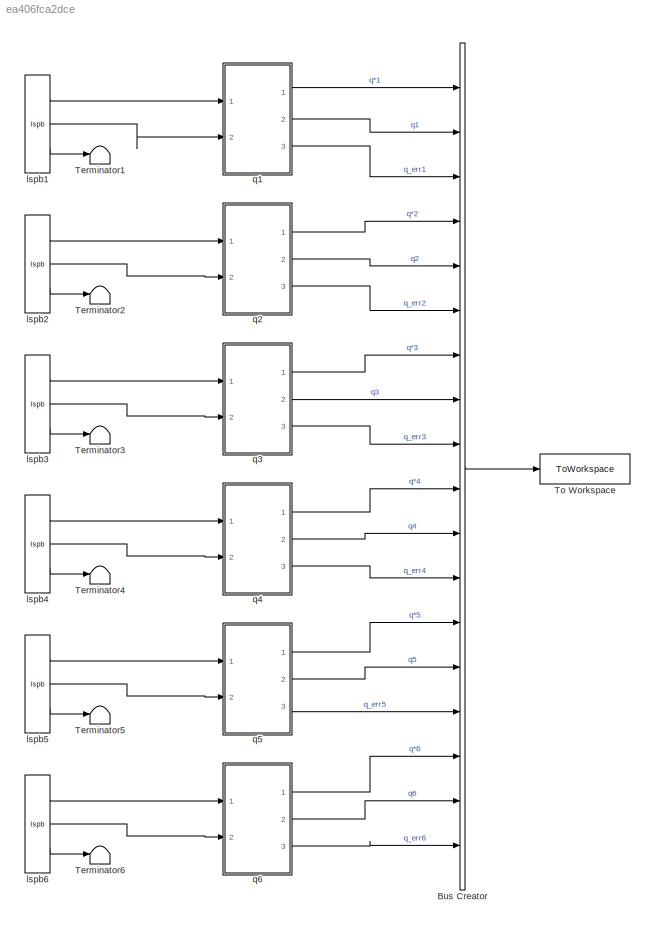
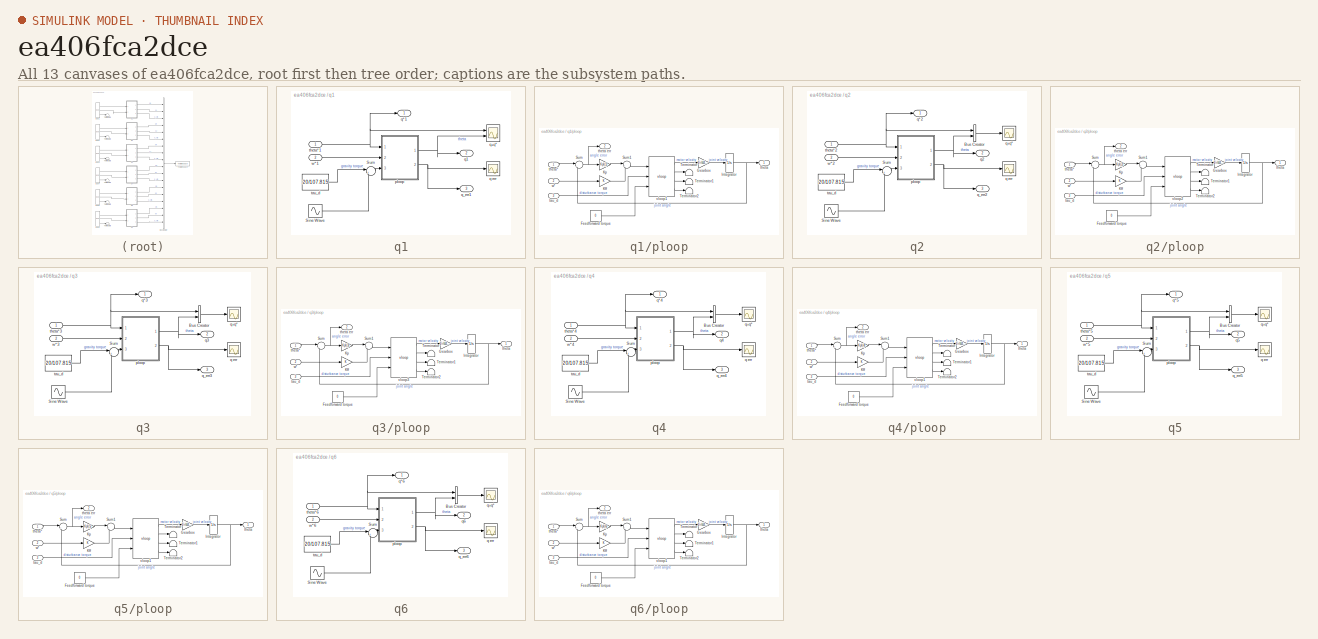
[diagram: thumbnail index - all 13 canvases of the model, root first then tree order]
MODEL slx_ea406fca2dce
KIND model
CONFIG AbsTol = auto
CONFIG EnableMultiTasking = on
CONFIG FixedStep = auto
CONFIG MaxStep = auto
CONFIG MinStep = auto
CONFIG RelTol = 1e-3
CONFIG SampleTimeConstraint = Unconstrained
CONFIG SolverName = ode15s
CONFIG StartTime = 0.0
CONFIG StopTime = 1
BLOCK [BusCreator] Bus Creator
  DisplayOption = bar
  InheritFromInputs = on
  Inputs = 18
  Ports = [18, 1]
BLOCK [Terminator] Terminator1
BLOCK [Terminator] Terminator2
BLOCK [Terminator] Terminator3
BLOCK [Terminator] Terminator4
BLOCK [Terminator] Terminator5
BLOCK [Terminator] Terminator6
BLOCK [ToWorkspace] To Workspace
  FixptAsFi = on
  MaxDataPoints = inf
  Ports = [1]
  SampleTime = -1
  SaveFormat = Structure With Time
  VariableName = ploop
BLOCK [Reference] lspb1  REF=roblocks/Toolbox/lspb  (lib defined in mdl_2a292b13c81b, mdl_69400f8cfe22, +12 more)
  Ports = [0, 3]
  SourceBlock = roblocks/Toolbox/lspb
BLOCK [Reference] lspb2  REF=roblocks/Toolbox/lspb  (lib defined in mdl_2a292b13c81b, mdl_69400f8cfe22, +12 more)
  Ports = [0, 3]
  SourceBlock = roblocks/Toolbox/lspb
BLOCK [Reference] lspb3  REF=roblocks/Toolbox/lspb  (lib defined in mdl_2a292b13c81b, mdl_69400f8cfe22, +12 more)
  Ports = [0, 3]
  SourceBlock = roblocks/Toolbox/lspb
BLOCK [Reference] lspb4  REF=roblocks/Toolbox/lspb  (lib defined in mdl_2a292b13c81b, mdl_69400f8cfe22, +12 more)
  Ports = [0, 3]
  SourceBlock = roblocks/Toolbox/lspb
BLOCK [Reference] lspb5  REF=roblocks/Toolbox/lspb  (lib defined in mdl_2a292b13c81b, mdl_69400f8cfe22, +12 more)
  Ports = [0, 3]
  SourceBlock = roblocks/Toolbox/lspb
BLOCK [Reference] lspb6  REF=roblocks/Toolbox/lspb  (lib defined in mdl_2a292b13c81b, mdl_69400f8cfe22, +12 more)
  Ports = [0, 3]
  SourceBlock = roblocks/Toolbox/lspb
BLOCK [SubSystem] q1
  Ports = [2, 3]
  RequestExecContextInheritance = off
BLOCK [Sin] q1/Sine Wave
  Amplitude = Amp_noise(1)
  Frequency = Fr_noise(1)
  Ports = [0, 1]
  SampleTime = 0.0001
BLOCK [Sum] q1/Sum
  Inputs = |++
  Ports = [2, 1]
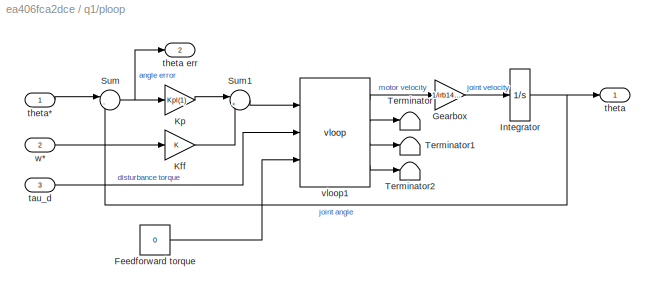
BLOCK [SubSystem] q1/ploop
  Ports = [3, 2]
  RequestExecContextInheritance = off
BLOCK [Constant] q1/ploop/Feedforward torque
  Value = 0
BLOCK [Gain] q1/ploop/Gearbox
  Gain = 1/irb140.links(1, 1).G
BLOCK [Integrator] q1/ploop/Integrator
  Ports = [1, 1]
BLOCK [Gain] q1/ploop/Kff
BLOCK [Gain] q1/ploop/Kp
  Gain = Kpl(1)
BLOCK [Sum] q1/ploop/Sum
  Inputs = |-+
  Ports = [2, 1]
BLOCK [Sum] q1/ploop/Sum1
  Inputs = |++
  Ports = [2, 1]
BLOCK [Terminator] q1/ploop/Terminator
BLOCK [Terminator] q1/ploop/Terminator1
BLOCK [Terminator] q1/ploop/Terminator2
BLOCK [Inport] q1/ploop/tau_d
  Port = 3
BLOCK [Outport] q1/ploop/theta
  VectorParamsAs1DForOutWhenUnconnected = off
BLOCK [Outport] q1/ploop/theta err
  Port = 2
  VectorParamsAs1DForOutWhenUnconnected = off
BLOCK [Inport] q1/ploop/theta*
BLOCK [Reference] q1/ploop/vloop1  REF=roblocks/Arm/vloop  (lib defined in mdl_2a292b13c81b, mdl_69400f8cfe22, +12 more)
  Ports = [3, 4]
  SourceBlock = roblocks/Arm/vloop
BLOCK [Inport] q1/ploop/w*
  Port = 2
BLOCK [Scope] q1/q err
  Floating = off
  NumInputPorts = 1
  Ports = [1]
  ScopeSpecificationString = Simulink.scopes.TimeScopeBlockCfg('CurrentConfiguration', extmgr.ConfigurationSet(extmgr.Configuration('Core','General UI',true),extmgr.Configuration('Core','Source UI',true),extmgr.Configuration('Sources','WiredSimulink',true,'DataLoggingSaveFormat','StructureWithTime','DataLoggingLimitDataPoints',true,'DataLoggingDecimation','1','DataLoggingDecimateData',true),extmgr.Configuration('Visuals','Tim...<+1811ch>
BLOCK [Outport] q1/q*1
  VectorParamsAs1DForOutWhenUnconnected = off
BLOCK [Scope] q1/q+q* 
  Floating = off
  NumInputPorts = 2
  Ports = [2]
  ScopeSpecificationString = Simulink.scopes.TimeScopeBlockCfg('CurrentConfiguration', extmgr.ConfigurationSet(extmgr.Configuration('Core','General UI',true),extmgr.Configuration('Core','Source UI',true),extmgr.Configuration('Sources','WiredSimulink',true,'DataLoggingVariableName','ScopeData1','DataLoggingSaveFormat','StructureWithTime','DataLoggingLimitDataPoints',true,'DataLoggingDecimation','1','DataLoggingDecimateData',tr...<+1752ch>
BLOCK [Outport] q1/q1
  Port = 2
  VectorParamsAs1DForOutWhenUnconnected = off
BLOCK [Outport] q1/q_err1
  Port = 3
  VectorParamsAs1DForOutWhenUnconnected = off
BLOCK [Constant] q1/tau_d
  Value = 20/107.815
BLOCK [Inport] q1/theta*1
BLOCK [Inport] q1/w*1
  Port = 2
BLOCK [SubSystem] q2
  Ports = [2, 3]
  RequestExecContextInheritance = off
BLOCK [BusCreator] q2/Bus Creator
  DisplayOption = bar
  InheritFromInputs = on
  Inputs = 2
  Ports = [2, 1]
BLOCK [Sin] q2/Sine Wave
  Amplitude = Amp_noise(2)
  Frequency = Fr_noise(2)
  Ports = [0, 1]
  SampleTime = 0.0001
BLOCK [Sum] q2/Sum
  Inputs = |++
  Ports = [2, 1]
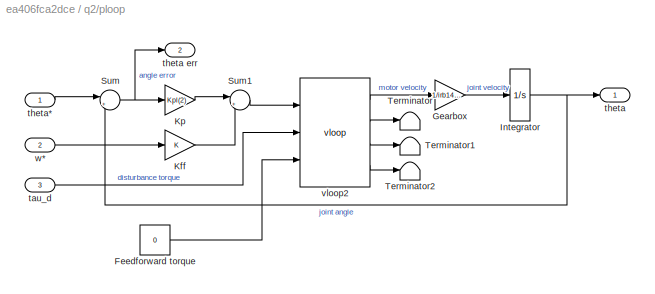
BLOCK [SubSystem] q2/ploop
  Ports = [3, 2]
  RequestExecContextInheritance = off
BLOCK [Constant] q2/ploop/Feedforward torque
  Value = 0
BLOCK [Gain] q2/ploop/Gearbox
  Gain = 1/irb140.links(1, 2).G
BLOCK [Integrator] q2/ploop/Integrator
  Ports = [1, 1]
BLOCK [Gain] q2/ploop/Kff
BLOCK [Gain] q2/ploop/Kp
  Gain = Kpl(2)
BLOCK [Sum] q2/ploop/Sum
  Inputs = |+-
  Ports = [2, 1]
BLOCK [Sum] q2/ploop/Sum1
  Inputs = |++
  Ports = [2, 1]
BLOCK [Terminator] q2/ploop/Terminator
BLOCK [Terminator] q2/ploop/Terminator1
BLOCK [Terminator] q2/ploop/Terminator2
BLOCK [Inport] q2/ploop/tau_d
  Port = 3
BLOCK [Outport] q2/ploop/theta
  VectorParamsAs1DForOutWhenUnconnected = off
BLOCK [Outport] q2/ploop/theta err
  Port = 2
  VectorParamsAs1DForOutWhenUnconnected = off
BLOCK [Inport] q2/ploop/theta*
BLOCK [Reference] q2/ploop/vloop2  REF=roblocks/Arm/vloop  (lib defined in mdl_2a292b13c81b, mdl_69400f8cfe22, +12 more)
  Ports = [3, 4]
  SourceBlock = roblocks/Arm/vloop
BLOCK [Inport] q2/ploop/w*
  Port = 2
BLOCK [Scope] q2/q err
  Floating = off
  NumInputPorts = 1
  Ports = [1]
  ScopeSpecificationString = Simulink.scopes.TimeScopeBlockCfg('CurrentConfiguration', extmgr.ConfigurationSet(extmgr.Configuration('Core','General UI',true),extmgr.Configuration('Core','Source UI',true),extmgr.Configuration('Sources','WiredSimulink',true,'DataLoggingSaveFormat','StructureWithTime','DataLoggingLimitDataPoints',true,'DataLoggingDecimation','1','DataLoggingDecimateData',true),extmgr.Configuration('Visuals','Tim...<+1784ch>
BLOCK [Outport] q2/q*2
  VectorParamsAs1DForOutWhenUnconnected = off
BLOCK [Scope] q2/q+q* 
  Floating = off
  NumInputPorts = 1
  Ports = [1]
  ScopeSpecificationString = Simulink.scopes.TimeScopeBlockCfg('CurrentConfiguration', extmgr.ConfigurationSet(extmgr.Configuration('Core','General UI',true),extmgr.Configuration('Core','Source UI',true),extmgr.Configuration('Sources','WiredSimulink',true,'DataLoggingVariableName','ScopeData1','DataLoggingSaveFormat','StructureWithTime','DataLoggingLimitDataPoints',true,'DataLoggingDecimation','1','DataLoggingDecimateData',tr...<+1737ch>  <repeated x4 — deduplicated; at blocks: q+q*>
BLOCK [Outport] q2/q2
  Port = 2
  VectorParamsAs1DForOutWhenUnconnected = off
BLOCK [Outport] q2/q_err2
  Port = 3
  VectorParamsAs1DForOutWhenUnconnected = off
BLOCK [Constant] q2/tau_d
  Value = 20/107.815
BLOCK [Inport] q2/theta*2
BLOCK [Inport] q2/w*2
  Port = 2
BLOCK [SubSystem] q3
  Ports = [2, 3]
  RequestExecContextInheritance = off
BLOCK [BusCreator] q3/Bus Creator
  DisplayOption = bar
  InheritFromInputs = on
  Inputs = 2
  Ports = [2, 1]
BLOCK [Sin] q3/Sine Wave
  Amplitude = Amp_noise(3)
  Frequency = Fr_noise(3)
  Ports = [0, 1]
  SampleTime = 0.0001
BLOCK [Sum] q3/Sum
  Inputs = |++
  Ports = [2, 1]
BLOCK [SubSystem] q3/ploop
  Ports = [3, 2]
  RequestExecContextInheritance = off
BLOCK [Constant] q3/ploop/Feedforward torque
  Value = 0
BLOCK [Gain] q3/ploop/Gearbox
  Gain = 1/irb140.links(1, 3).G
BLOCK [Integrator] q3/ploop/Integrator
  Ports = [1, 1]
BLOCK [Gain] q3/ploop/Kff
BLOCK [Gain] q3/ploop/Kp
  Gain = Kpl(3)
BLOCK [Sum] q3/ploop/Sum
  Inputs = |-+
  Ports = [2, 1]
BLOCK [Sum] q3/ploop/Sum1
  Inputs = |++
  Ports = [2, 1]
BLOCK [Terminator] q3/ploop/Terminator
BLOCK [Terminator] q3/ploop/Terminator1
BLOCK [Terminator] q3/ploop/Terminator2
BLOCK [Inport] q3/ploop/tau_d
  Port = 3
BLOCK [Outport] q3/ploop/theta
  VectorParamsAs1DForOutWhenUnconnected = off
BLOCK [Outport] q3/ploop/theta err
  Port = 2
  VectorParamsAs1DForOutWhenUnconnected = off
BLOCK [Inport] q3/ploop/theta*
BLOCK [Reference] q3/ploop/vloop3  REF=roblocks/Arm/vloop  (lib defined in mdl_2a292b13c81b, mdl_69400f8cfe22, +12 more)
  Ports = [3, 4]
  SourceBlock = roblocks/Arm/vloop
BLOCK [Inport] q3/ploop/w*
  Port = 2
BLOCK [Scope] q3/q err
  Floating = off
  NumInputPorts = 1
  Ports = [1]
  ScopeSpecificationString = Simulink.scopes.TimeScopeBlockCfg('CurrentConfiguration', extmgr.ConfigurationSet(extmgr.Configuration('Core','General UI',true),extmgr.Configuration('Core','Source UI',true),extmgr.Configuration('Sources','WiredSimulink',true,'DataLoggingSaveFormat','StructureWithTime','DataLoggingLimitDataPoints',true,'DataLoggingDecimation','1','DataLoggingDecimateData',true),extmgr.Configuration('Visuals','Tim...<+1754ch>  <repeated x4 — deduplicated; at blocks: q err>
BLOCK [Outport] q3/q*3
  VectorParamsAs1DForOutWhenUnconnected = off
BLOCK [Scope] q3/q+q* 
  Floating = off
  NumInputPorts = 1
  Ports = [1]
BLOCK [Outport] q3/q3
  Port = 2
  VectorParamsAs1DForOutWhenUnconnected = off
BLOCK [Outport] q3/q_err3
  Port = 3
  VectorParamsAs1DForOutWhenUnconnected = off
BLOCK [Constant] q3/tau_d
  Value = 20/107.815
BLOCK [Inport] q3/theta*3
BLOCK [Inport] q3/w*3
  Port = 2
BLOCK [SubSystem] q4
  Ports = [2, 3]
  RequestExecContextInheritance = off
BLOCK [BusCreator] q4/Bus Creator
  DisplayOption = bar
  InheritFromInputs = on
  Inputs = 2
  Ports = [2, 1]
BLOCK [Sin] q4/Sine Wave
  Amplitude = Amp_noise(4)
  Frequency = Fr_noise(4)
  Ports = [0, 1]
  SampleTime = 0.0001
BLOCK [Sum] q4/Sum
  Inputs = |++
  Ports = [2, 1]
BLOCK [SubSystem] q4/ploop
  Ports = [3, 2]
  RequestExecContextInheritance = off
BLOCK [Constant] q4/ploop/Feedforward torque
  Value = 0
BLOCK [Gain] q4/ploop/Gearbox
  Gain = 1/irb140.links(1, 4).G
BLOCK [Integrator] q4/ploop/Integrator
  Ports = [1, 1]
BLOCK [Gain] q4/ploop/Kff
BLOCK [Gain] q4/ploop/Kp
  Gain = Kpl(4)
BLOCK [Sum] q4/ploop/Sum
  Inputs = |+-
  Ports = [2, 1]
BLOCK [Sum] q4/ploop/Sum1
  Inputs = |++
  Ports = [2, 1]
BLOCK [Terminator] q4/ploop/Terminator
BLOCK [Terminator] q4/ploop/Terminator1
BLOCK [Terminator] q4/ploop/Terminator2
BLOCK [Inport] q4/ploop/tau_d
  Port = 3
BLOCK [Outport] q4/ploop/theta
  VectorParamsAs1DForOutWhenUnconnected = off
BLOCK [Outport] q4/ploop/theta err
  Port = 2
  VectorParamsAs1DForOutWhenUnconnected = off
BLOCK [Inport] q4/ploop/theta*
BLOCK [Reference] q4/ploop/vloop1  REF=roblocks/Arm/vloop  (lib defined in mdl_2a292b13c81b, mdl_69400f8cfe22, +12 more)
  Ports = [3, 4]
  SourceBlock = roblocks/Arm/vloop
BLOCK [Inport] q4/ploop/w*
  Port = 2
BLOCK [Scope] q4/q err
  Floating = off
  NumInputPorts = 1
  Ports = [1]
BLOCK [Outport] q4/q*4
  VectorParamsAs1DForOutWhenUnconnected = off
BLOCK [Scope] q4/q+q* 
  Floating = off
  NumInputPorts = 1
  Ports = [1]
BLOCK [Outport] q4/q4
  Port = 2
  VectorParamsAs1DForOutWhenUnconnected = off
BLOCK [Outport] q4/q_err4
  Port = 3
  VectorParamsAs1DForOutWhenUnconnected = off
BLOCK [Constant] q4/tau_d
  Value = 20/107.815
BLOCK [Inport] q4/theta*4
BLOCK [Inport] q4/w*4
  Port = 2
BLOCK [SubSystem] q5
  Ports = [2, 3]
  RequestExecContextInheritance = off
BLOCK [BusCreator] q5/Bus Creator
  DisplayOption = bar
  InheritFromInputs = on
  Inputs = 2
  Ports = [2, 1]
BLOCK [Sin] q5/Sine Wave
  Amplitude = Amp_noise(5)
  Frequency = Fr_noise(5)
  Ports = [0, 1]
  SampleTime = 0.0001
BLOCK [Sum] q5/Sum
  Inputs = |++
  Ports = [2, 1]
BLOCK [SubSystem] q5/ploop
  Ports = [3, 2]
  RequestExecContextInheritance = off
BLOCK [Constant] q5/ploop/Feedforward torque
  Value = 0
BLOCK [Gain] q5/ploop/Gearbox
  Gain = 1/irb140.links(1, 5).G
BLOCK [Integrator] q5/ploop/Integrator
  Ports = [1, 1]
BLOCK [Gain] q5/ploop/Kff
BLOCK [Gain] q5/ploop/Kp
  Gain = Kpl(5)
BLOCK [Sum] q5/ploop/Sum
  Inputs = |+-
  Ports = [2, 1]
BLOCK [Sum] q5/ploop/Sum1
  Inputs = |++
  Ports = [2, 1]
BLOCK [Terminator] q5/ploop/Terminator
BLOCK [Terminator] q5/ploop/Terminator1
BLOCK [Terminator] q5/ploop/Terminator2
BLOCK [Inport] q5/ploop/tau_d
  Port = 3
BLOCK [Outport] q5/ploop/theta
  VectorParamsAs1DForOutWhenUnconnected = off
BLOCK [Outport] q5/ploop/theta err
  Port = 2
  VectorParamsAs1DForOutWhenUnconnected = off
BLOCK [Inport] q5/ploop/theta*
BLOCK [Reference] q5/ploop/vloop1  REF=roblocks/Arm/vloop  (lib defined in mdl_2a292b13c81b, mdl_69400f8cfe22, +12 more)
  Ports = [3, 4]
  SourceBlock = roblocks/Arm/vloop
BLOCK [Inport] q5/ploop/w*
  Port = 2
BLOCK [Scope] q5/q err
  Floating = off
  NumInputPorts = 1
  Ports = [1]
BLOCK [Outport] q5/q*5
  VectorParamsAs1DForOutWhenUnconnected = off
BLOCK [Scope] q5/q+q* 
  Floating = off
  NumInputPorts = 1
  Ports = [1]
  ScopeSpecificationString = Simulink.scopes.TimeScopeBlockCfg('CurrentConfiguration', extmgr.ConfigurationSet(extmgr.Configuration('Core','General UI',true),extmgr.Configuration('Core','Source UI',true),extmgr.Configuration('Sources','WiredSimulink',true,'DataLoggingVariableName','ScopeData1','DataLoggingSaveFormat','StructureWithTime','DataLoggingLimitDataPoints',true,'DataLoggingDecimation','1','DataLoggingDecimateData',tr...<+1777ch>
BLOCK [Outport] q5/q5
  Port = 2
  VectorParamsAs1DForOutWhenUnconnected = off
BLOCK [Outport] q5/q_err5
  Port = 3
  VectorParamsAs1DForOutWhenUnconnected = off
BLOCK [Constant] q5/tau_d
  Value = 20/107.815
BLOCK [Inport] q5/theta*5
BLOCK [Inport] q5/w*5
  Port = 2
BLOCK [SubSystem] q6
  Ports = [2, 3]
  RequestExecContextInheritance = off
BLOCK [BusCreator] q6/Bus Creator
  DisplayOption = bar
  InheritFromInputs = on
  Inputs = 2
  Ports = [2, 1]
BLOCK [Sin] q6/Sine Wave
  Amplitude = Amp_noise(6)
  Frequency = Fr_noise(6)
  Ports = [0, 1]
  SampleTime = 0.0001
BLOCK [Sum] q6/Sum
  Inputs = |++
  Ports = [2, 1]
BLOCK [SubSystem] q6/ploop
  Ports = [3, 2]
  RequestExecContextInheritance = off
BLOCK [Constant] q6/ploop/Feedforward torque
  Value = 0
BLOCK [Gain] q6/ploop/Gearbox
  Gain = 1/irb140.links(1, 6).G
BLOCK [Integrator] q6/ploop/Integrator
  Ports = [1, 1]
BLOCK [Gain] q6/ploop/Kff
BLOCK [Gain] q6/ploop/Kp
  Gain = Kpl(6)
BLOCK [Sum] q6/ploop/Sum
  Inputs = |+-
  Ports = [2, 1]
BLOCK [Sum] q6/ploop/Sum1
  Inputs = |++
  Ports = [2, 1]
BLOCK [Terminator] q6/ploop/Terminator
BLOCK [Terminator] q6/ploop/Terminator1
BLOCK [Terminator] q6/ploop/Terminator2
BLOCK [Inport] q6/ploop/tau_d
  Port = 3
BLOCK [Outport] q6/ploop/theta
  VectorParamsAs1DForOutWhenUnconnected = off
BLOCK [Outport] q6/ploop/theta err
  Port = 2
  VectorParamsAs1DForOutWhenUnconnected = off
BLOCK [Inport] q6/ploop/theta*
BLOCK [Reference] q6/ploop/vloop1  REF=roblocks/Arm/vloop  (lib defined in mdl_2a292b13c81b, mdl_69400f8cfe22, +12 more)
  Ports = [3, 4]
  SourceBlock = roblocks/Arm/vloop
BLOCK [Inport] q6/ploop/w*
  Port = 2
BLOCK [Scope] q6/q err
  Floating = off
  NumInputPorts = 1
  Ports = [1]
BLOCK [Outport] q6/q*6
  VectorParamsAs1DForOutWhenUnconnected = off
BLOCK [Scope] q6/q+q* 
  Floating = off
  NumInputPorts = 1
  Ports = [1]
BLOCK [Outport] q6/q6
  Port = 2
  VectorParamsAs1DForOutWhenUnconnected = off
BLOCK [Outport] q6/q_err6
  Port = 3
  VectorParamsAs1DForOutWhenUnconnected = off
BLOCK [Constant] q6/tau_d
  Value = 20/107.815
BLOCK [Inport] q6/theta*6
BLOCK [Inport] q6/w*6
  Port = 2
LINE Bus Creator:1 -> To Workspace:1
LINE lspb1:1 -> q1:1
LINE lspb1:2 -> q1:2
LINE lspb1:3 -> Terminator1:1
LINE lspb2:1 -> q2:1
LINE lspb2:2 -> q2:2
LINE lspb2:3 -> Terminator2:1
LINE lspb3:1 -> q3:1
LINE lspb3:2 -> q3:2
LINE lspb3:3 -> Terminator3:1
LINE lspb4:1 -> q4:1
LINE lspb4:2 -> q4:2
LINE lspb4:3 -> Terminator4:1
LINE lspb5:1 -> q5:1
LINE lspb5:2 -> q5:2
LINE lspb5:3 -> Terminator5:1
LINE lspb6:1 -> q6:1
LINE lspb6:2 -> q6:2
LINE lspb6:3 -> Terminator6:1
LINE q1/Sine Wave:1 -> q1/Sum:2
LINE q1/Sum:1 -> q1/ploop:3
LINE q1/ploop/Feedforward torque:1 -> q1/ploop/vloop1:3
LINE q1/ploop/Gearbox:1 -> q1/ploop/Integrator:1
NET q1/ploop/Integrator:1 -> q1/ploop/Sum:2, q1/ploop/theta:1
LINE q1/ploop/Kff:1 -> q1/ploop/Sum1:2
LINE q1/ploop/Kp:1 -> q1/ploop/Sum1:1
LINE q1/ploop/Sum1:1 -> q1/ploop/vloop1:1
NET q1/ploop/Sum:1 -> q1/ploop/Kp:1, q1/ploop/theta err:1
LINE q1/ploop/tau_d:1 -> q1/ploop/vloop1:2
LINE q1/ploop/theta*:1 -> q1/ploop/Sum:1
LINE q1/ploop/vloop1:1 -> q1/ploop/Gearbox:1
LINE q1/ploop/vloop1:2 -> q1/ploop/Terminator:1
LINE q1/ploop/vloop1:3 -> q1/ploop/Terminator1:1
LINE q1/ploop/vloop1:4 -> q1/ploop/Terminator2:1
LINE q1/ploop/w*:1 -> q1/ploop/Kff:1
NET q1/ploop:1 -> q1/q+q* :2, q1/q1:1
NET q1/ploop:2 -> q1/q err:1, q1/q_err1:1
LINE q1/tau_d:1 -> q1/Sum:1
NET q1/theta*1:1 -> q1/ploop:1, q1/q*1:1, q1/q+q* :1
LINE q1/w*1:1 -> q1/ploop:2
LINE q1:1 -> Bus Creator:1
LINE q1:2 -> Bus Creator:2
LINE q1:3 -> Bus Creator:3
LINE q2/Bus Creator:1 -> q2/q+q* :1
LINE q2/Sine Wave:1 -> q2/Sum:2
LINE q2/Sum:1 -> q2/ploop:3
LINE q2/ploop/Feedforward torque:1 -> q2/ploop/vloop2:3
LINE q2/ploop/Gearbox:1 -> q2/ploop/Integrator:1
NET q2/ploop/Integrator:1 -> q2/ploop/Sum:2, q2/ploop/theta:1
LINE q2/ploop/Kff:1 -> q2/ploop/Sum1:2
LINE q2/ploop/Kp:1 -> q2/ploop/Sum1:1
LINE q2/ploop/Sum1:1 -> q2/ploop/vloop2:1
NET q2/ploop/Sum:1 -> q2/ploop/Kp:1, q2/ploop/theta err:1
LINE q2/ploop/tau_d:1 -> q2/ploop/vloop2:2
LINE q2/ploop/theta*:1 -> q2/ploop/Sum:1
LINE q2/ploop/vloop2:1 -> q2/ploop/Gearbox:1
LINE q2/ploop/vloop2:2 -> q2/ploop/Terminator:1
LINE q2/ploop/vloop2:3 -> q2/ploop/Terminator1:1
LINE q2/ploop/vloop2:4 -> q2/ploop/Terminator2:1
LINE q2/ploop/w*:1 -> q2/ploop/Kff:1
NET q2/ploop:1 -> q2/Bus Creator:2, q2/q2:1
NET q2/ploop:2 -> q2/q err:1, q2/q_err2:1
LINE q2/tau_d:1 -> q2/Sum:1
NET q2/theta*2:1 -> q2/Bus Creator:1, q2/ploop:1, q2/q*2:1
LINE q2/w*2:1 -> q2/ploop:2
LINE q2:1 -> Bus Creator:4
LINE q2:2 -> Bus Creator:5
LINE q2:3 -> Bus Creator:6
LINE q3/Bus Creator:1 -> q3/q+q* :1
LINE q3/Sine Wave:1 -> q3/Sum:2
LINE q3/Sum:1 -> q3/ploop:3
LINE q3/ploop/Feedforward torque:1 -> q3/ploop/vloop3:3
LINE q3/ploop/Gearbox:1 -> q3/ploop/Integrator:1
NET q3/ploop/Integrator:1 -> q3/ploop/Sum:2, q3/ploop/theta:1
LINE q3/ploop/Kff:1 -> q3/ploop/Sum1:2
LINE q3/ploop/Kp:1 -> q3/ploop/Sum1:1
LINE q3/ploop/Sum1:1 -> q3/ploop/vloop3:1
NET q3/ploop/Sum:1 -> q3/ploop/Kp:1, q3/ploop/theta err:1
LINE q3/ploop/tau_d:1 -> q3/ploop/vloop3:2
LINE q3/ploop/theta*:1 -> q3/ploop/Sum:1
LINE q3/ploop/vloop3:1 -> q3/ploop/Gearbox:1
LINE q3/ploop/vloop3:2 -> q3/ploop/Terminator:1
LINE q3/ploop/vloop3:3 -> q3/ploop/Terminator1:1
LINE q3/ploop/vloop3:4 -> q3/ploop/Terminator2:1
LINE q3/ploop/w*:1 -> q3/ploop/Kff:1
NET q3/ploop:1 -> q3/Bus Creator:2, q3/q3:1
NET q3/ploop:2 -> q3/q err:1, q3/q_err3:1
LINE q3/tau_d:1 -> q3/Sum:1
NET q3/theta*3:1 -> q3/Bus Creator:1, q3/ploop:1, q3/q*3:1
LINE q3/w*3:1 -> q3/ploop:2
LINE q3:1 -> Bus Creator:7
LINE q3:2 -> Bus Creator:8
LINE q3:3 -> Bus Creator:9
LINE q4/Bus Creator:1 -> q4/q+q* :1
LINE q4/Sine Wave:1 -> q4/Sum:2
LINE q4/Sum:1 -> q4/ploop:3
LINE q4/ploop/Feedforward torque:1 -> q4/ploop/vloop1:3
LINE q4/ploop/Gearbox:1 -> q4/ploop/Integrator:1
NET q4/ploop/Integrator:1 -> q4/ploop/Sum:2, q4/ploop/theta:1
LINE q4/ploop/Kff:1 -> q4/ploop/Sum1:2
LINE q4/ploop/Kp:1 -> q4/ploop/Sum1:1
LINE q4/ploop/Sum1:1 -> q4/ploop/vloop1:1
NET q4/ploop/Sum:1 -> q4/ploop/Kp:1, q4/ploop/theta err:1
LINE q4/ploop/tau_d:1 -> q4/ploop/vloop1:2
LINE q4/ploop/theta*:1 -> q4/ploop/Sum:1
LINE q4/ploop/vloop1:1 -> q4/ploop/Gearbox:1
LINE q4/ploop/vloop1:2 -> q4/ploop/Terminator:1
LINE q4/ploop/vloop1:3 -> q4/ploop/Terminator1:1
LINE q4/ploop/vloop1:4 -> q4/ploop/Terminator2:1
LINE q4/ploop/w*:1 -> q4/ploop/Kff:1
NET q4/ploop:1 -> q4/Bus Creator:2, q4/q4:1
NET q4/ploop:2 -> q4/q err:1, q4/q_err4:1
LINE q4/tau_d:1 -> q4/Sum:1
NET q4/theta*4:1 -> q4/Bus Creator:1, q4/ploop:1, q4/q*4:1
LINE q4/w*4:1 -> q4/ploop:2
LINE q4:1 -> Bus Creator:10
LINE q4:2 -> Bus Creator:11
LINE q4:3 -> Bus Creator:12
LINE q5/Bus Creator:1 -> q5/q+q* :1
LINE q5/Sine Wave:1 -> q5/Sum:2
LINE q5/Sum:1 -> q5/ploop:3
LINE q5/ploop/Feedforward torque:1 -> q5/ploop/vloop1:3
LINE q5/ploop/Gearbox:1 -> q5/ploop/Integrator:1
NET q5/ploop/Integrator:1 -> q5/ploop/Sum:2, q5/ploop/theta:1
LINE q5/ploop/Kff:1 -> q5/ploop/Sum1:2
LINE q5/ploop/Kp:1 -> q5/ploop/Sum1:1
LINE q5/ploop/Sum1:1 -> q5/ploop/vloop1:1
NET q5/ploop/Sum:1 -> q5/ploop/Kp:1, q5/ploop/theta err:1
LINE q5/ploop/tau_d:1 -> q5/ploop/vloop1:2
LINE q5/ploop/theta*:1 -> q5/ploop/Sum:1
LINE q5/ploop/vloop1:1 -> q5/ploop/Gearbox:1
LINE q5/ploop/vloop1:2 -> q5/ploop/Terminator:1
LINE q5/ploop/vloop1:3 -> q5/ploop/Terminator1:1
LINE q5/ploop/vloop1:4 -> q5/ploop/Terminator2:1
LINE q5/ploop/w*:1 -> q5/ploop/Kff:1
NET q5/ploop:1 -> q5/Bus Creator:2, q5/q5:1
NET q5/ploop:2 -> q5/q err:1, q5/q_err5:1
LINE q5/tau_d:1 -> q5/Sum:1
NET q5/theta*5:1 -> q5/Bus Creator:1, q5/ploop:1, q5/q*5:1
LINE q5/w*5:1 -> q5/ploop:2
LINE q5:1 -> Bus Creator:13
LINE q5:2 -> Bus Creator:14
LINE q5:3 -> Bus Creator:15
LINE q6/Bus Creator:1 -> q6/q+q* :1
LINE q6/Sine Wave:1 -> q6/Sum:2
LINE q6/Sum:1 -> q6/ploop:3
LINE q6/ploop/Feedforward torque:1 -> q6/ploop/vloop1:3
LINE q6/ploop/Gearbox:1 -> q6/ploop/Integrator:1
NET q6/ploop/Integrator:1 -> q6/ploop/Sum:2, q6/ploop/theta:1
LINE q6/ploop/Kff:1 -> q6/ploop/Sum1:2
LINE q6/ploop/Kp:1 -> q6/ploop/Sum1:1
LINE q6/ploop/Sum1:1 -> q6/ploop/vloop1:1
NET q6/ploop/Sum:1 -> q6/ploop/Kp:1, q6/ploop/theta err:1
LINE q6/ploop/tau_d:1 -> q6/ploop/vloop1:2
LINE q6/ploop/theta*:1 -> q6/ploop/Sum:1
LINE q6/ploop/vloop1:1 -> q6/ploop/Gearbox:1
LINE q6/ploop/vloop1:2 -> q6/ploop/Terminator:1
LINE q6/ploop/vloop1:3 -> q6/ploop/Terminator1:1
LINE q6/ploop/vloop1:4 -> q6/ploop/Terminator2:1
LINE q6/ploop/w*:1 -> q6/ploop/Kff:1
NET q6/ploop:1 -> q6/Bus Creator:2, q6/q6:1
NET q6/ploop:2 -> q6/q err:1, q6/q_err6:1
LINE q6/tau_d:1 -> q6/Sum:1
NET q6/theta*6:1 -> q6/Bus Creator:1, q6/ploop:1, q6/q*6:1
LINE q6/w*6:1 -> q6/ploop:2
LINE q6:1 -> Bus Creator:16
LINE q6:2 -> Bus Creator:17
LINE q6:3 -> Bus Creator:18
note: NET lines group one-source signal fan-out (src -> all destinations, sorted); 1:1 wires keep LINE
